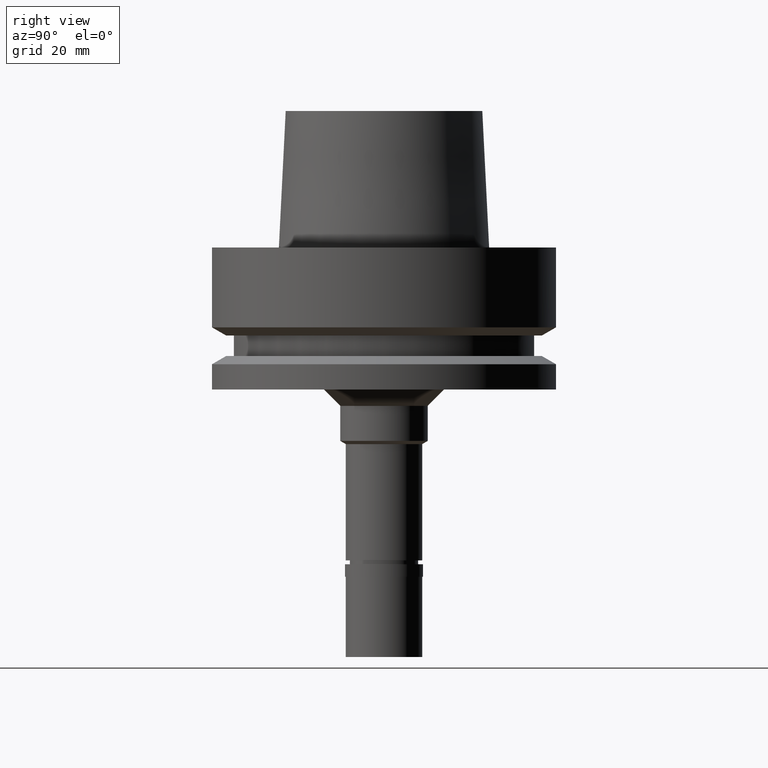
[diagram: clean part render]
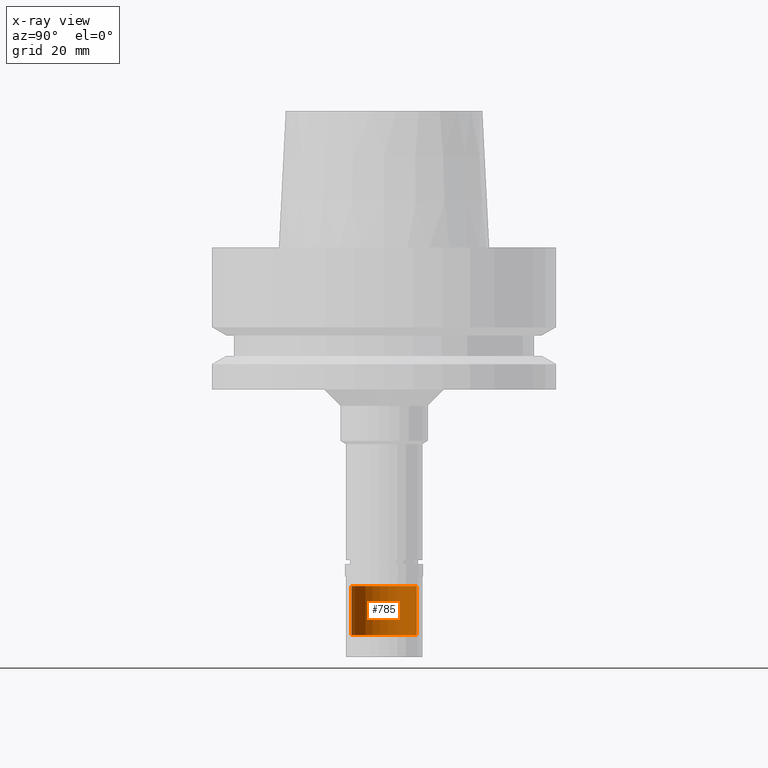
[diagram: x-ray — body ghosted, one internal face saturated and labeled with its STEP entity id]
A machine part, right view, then the same camera in x-ray: the body is ghosted and one INTERNAL B-rep face — a face not visible from any outside direction — is saturated and labeled: STEP entity #785.
In plain terms, the highlighted cylindrical surface (edge-blend (fillet) strip) has radius 6 mm, axis along (0, 0, 1).
Its self-contained STEP definition (entity closure, byte-faithful):
#37 = DIRECTION ( 'NONE',  ( 0.0000000000000000000, 0.0000000000000000000, -1.000000000000000000 ) ) ;
#130 = DIRECTION ( 'NONE',  ( 0.0000000000000000000, 0.0000000000000000000, -1.000000000000000000 ) ) ;
#208 = AXIS2_PLACEMENT_3D ( 'NONE', #2626, #37, #2170 ) ;
#302 = CARTESIAN_POINT ( 'NONE',  ( 0.0000000000000000000, 6.000000000000000000, -71.00000000000000000 ) ) ;
#307 = VECTOR ( 'NONE', #1282, 1000.000000000000000 ) ;
#346 = LINE ( 'NONE', #2083, #699 ) ;
#459 = EDGE_LOOP ( 'NONE', ( #1536, #2423, #1679, #2578 ) ) ;
#476 = CYLINDRICAL_SURFACE ( 'NONE', #2225, 6.000000000000000000 ) ;
#536 = CIRCLE ( 'NONE', #2392, 6.000000000000000000 ) ;
#671 = FACE_OUTER_BOUND ( 'NONE', #459, .T. ) ;
#686 = DIRECTION ( 'NONE',  ( 0.0000000000000000000, 0.0000000000000000000, 1.000000000000000000 ) ) ;
#699 = VECTOR ( 'NONE', #130, 1000.000000000000000 ) ;
#785 = ADVANCED_FACE ( 'NONE', ( #671 ), #476, .T. ) ;
#1084 = CARTESIAN_POINT ( 'NONE',  ( 0.0000000000000000000, 0.0000000000000000000, -71.00000000000000000 ) ) ;
#1115 = DIRECTION ( 'NONE',  ( 0.0000000000000000000, 1.000000000000000000, 0.0000000000000000000 ) ) ;
#1282 = DIRECTION ( 'NONE',  ( 0.0000000000000000000, 0.0000000000000000000, -1.000000000000000000 ) ) ;
#1295 = EDGE_CURVE ( 'NONE', #1433, #2577, #536, .T. ) ;
#1433 = VERTEX_POINT ( 'NONE', #302 ) ;
#1444 = CIRCLE ( 'NONE', #208, 6.000000000000000000 ) ;
#1467 = CARTESIAN_POINT ( 'NONE',  ( 0.0000000000000000000, -6.000000000000000000, -62.00000000000000000 ) ) ;
#1536 = ORIENTED_EDGE ( 'NONE', *, *, #1295, .T. ) ;
#1561 = VERTEX_POINT ( 'NONE', #1860 ) ;
#1565 = VERTEX_POINT ( 'NONE', #1467 ) ;
#1669 = EDGE_CURVE ( 'NONE', #1561, #1433, #346, .T. ) ;
#1679 = ORIENTED_EDGE ( 'NONE', *, *, #2303, .T. ) ;
#1712 = LINE ( 'NONE', #2166, #307 ) ;
#1772 = CARTESIAN_POINT ( 'NONE',  ( 0.0000000000000000000, 0.0000000000000000000, -75.80000000000001137 ) ) ;
#1848 = CARTESIAN_POINT ( 'NONE',  ( 0.0000000000000000000, -6.000000000000000000, -71.00000000000000000 ) ) ;
#1860 = CARTESIAN_POINT ( 'NONE',  ( 0.0000000000000000000, 6.000000000000000000, -62.00000000000000000 ) ) ;
#1944 = DIRECTION ( 'NONE',  ( 0.0000000000000000000, 1.000000000000000000, 0.0000000000000000000 ) ) ;
#2083 = CARTESIAN_POINT ( 'NONE',  ( 0.0000000000000000000, 6.000000000000000000, -62.00000000000000000 ) ) ;
#2136 = DIRECTION ( 'NONE',  ( 0.0000000000000000000, 0.0000000000000000000, 1.000000000000000000 ) ) ;
#2166 = CARTESIAN_POINT ( 'NONE',  ( 0.0000000000000000000, -6.000000000000000000, -62.00000000000000000 ) ) ;
#2170 = DIRECTION ( 'NONE',  ( 0.0000000000000000000, -1.000000000000000000, 0.0000000000000000000 ) ) ;
#2225 = AXIS2_PLACEMENT_3D ( 'NONE', #1772, #686, #1115 ) ;
#2303 = EDGE_CURVE ( 'NONE', #1565, #1561, #1444, .T. ) ;
#2392 = AXIS2_PLACEMENT_3D ( 'NONE', #1084, #2136, #1944 ) ;
#2423 = ORIENTED_EDGE ( 'NONE', *, *, #2796, .F. ) ;
#2577 = VERTEX_POINT ( 'NONE', #1848 ) ;
#2578 = ORIENTED_EDGE ( 'NONE', *, *, #1669, .T. ) ;
#2626 = CARTESIAN_POINT ( 'NONE',  ( 0.0000000000000000000, 0.0000000000000000000, -62.00000000000000000 ) ) ;
#2796 = EDGE_CURVE ( 'NONE', #1565, #2577, #1712, .T. ) ;